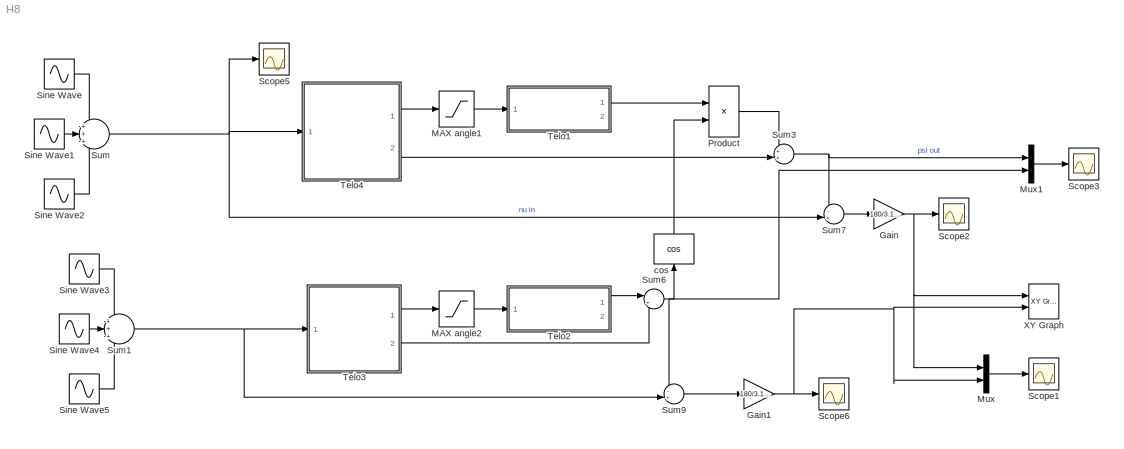
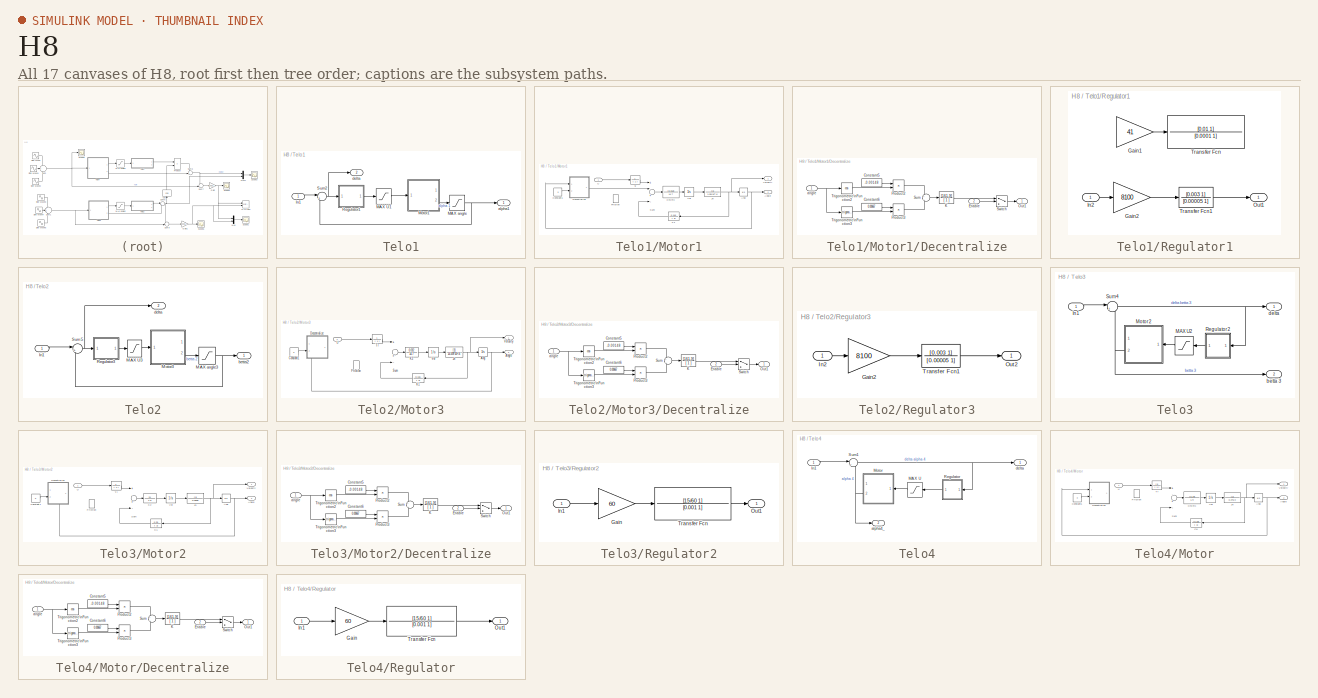
[diagram: thumbnail index - all 17 canvases of the model, root first then tree order]
MODEL H8
KIND model
BLOCK [Gain] Gain
  Gain = 180/3.14*60*60
  OutDataType = fixdt(1, 16)
  OutDataTypeMode = Inherit via internal rule
  OutDataTypeStr = Inherit: Inherit via internal rule
  OutScaling = 2^0
  ParamDataTypeStr = Inherit: Inherit via internal rule
  ParameterDataType = fixdt(1, 16)
  ParameterDataTypeMode = Inherit via internal rule
  ParameterScaling = 2^0
  SaturateOnIntegerOverflow = off
BLOCK [Gain] Gain1
  Gain = 180/3.14*60*60
  OutDataType = fixdt(1, 16)
  OutDataTypeMode = Inherit via internal rule
  OutDataTypeStr = Inherit: Inherit via internal rule
  OutScaling = 2^0
  ParamDataTypeStr = Inherit: Inherit via internal rule
  ParameterDataType = fixdt(1, 16)
  ParameterDataTypeMode = Inherit via internal rule
  ParameterScaling = 2^0
  SaturateOnIntegerOverflow = off
BLOCK [Saturate] MAX angle1
  LowerLimit = -3/180*3.14
  UpperLimit = 3/180*3.14
BLOCK [Saturate] MAX angle2
  LowerLimit = -3/180*3.14
  UpperLimit = 3/180*3.14
BLOCK [Mux] Mux
  DisplayOption = bar
  Inputs = 2
  Ports = [2, 1]
BLOCK [Mux] Mux1
  DisplayOption = bar
  Inputs = 2
  Ports = [2, 1]
BLOCK [Product] Product
  InputSameDT = off
  OutDataType = fixdt(1, 16)
  OutDataTypeMode = Inherit via internal rule
  OutDataTypeStr = Inherit: Inherit via internal rule
  OutScaling = 2^0
  Ports = [2, 1]
  SaturateOnIntegerOverflow = off
BLOCK [Scope] Scope1
  DataFormat = StructureWithTime
  Floating = off
  MaxDataPoints = 50000
  NumInputPorts = 1
  Ports = [1]
  SampleTime = 0
  YMax = 65000
  YMin = 25000
  ZoomMode = yonly
BLOCK [Scope] Scope2
  DataFormat = StructureWithTime
  Floating = off
  MaxDataPoints = 50000
  NumInputPorts = 1
  Ports = [1]
  SampleTime = 0
  SaveName = ScopeData2
  YMax = 65000
  YMin = 25000
  ZoomMode = yonly
BLOCK [Scope] Scope3
  DataFormat = StructureWithTime
  Floating = off
  MaxDataPoints = 50000
  NumInputPorts = 1
  Ports = [1]
  SampleTime = 0
  SaveName = ScopeData1
  YMax = 0.835
  YMin = 0.72
  ZoomMode = yonly
BLOCK [Scope] Scope5
  DataFormat = StructureWithTime
  Floating = off
  MaxDataPoints = 50000
  NumInputPorts = 1
  Ports = [1]
  SampleTime = 0
  SaveName = ScopeData5
  YMax = 0.025
  YMin = -0.375
  ZoomMode = yonly
BLOCK [Scope] Scope6
  DataFormat = StructureWithTime
  Floating = off
  MaxDataPoints = 50000
  NumInputPorts = 1
  Ports = [1]
  SampleTime = 0
  SaveName = ScopeData6
  YMax = 65000
  YMin = 25000
  ZoomMode = yonly
BLOCK [Sin] Sine Wave
  Amplitude = 0.8
  Bias = 0
  Frequency = 1
  Offset = 0
  Phase = 0
  Ports = [0, 1]
  SampleTime = 0
  Samples = 10
BLOCK [Sin] Sine Wave1
  Amplitude = 1/60
  Bias = 0
  Frequency = 2*pi*14
  Offset = 0
  Phase = 0
  Ports = [0, 1]
  SampleTime = 0
  Samples = 10
BLOCK [Sin] Sine Wave2
  Amplitude = 1/60
  Bias = 0
  Frequency = 2*pi*4
  Offset = 0
  Phase = 0
  Ports = [0, 1]
  SampleTime = 0
  Samples = 10
BLOCK [Sin] Sine Wave3
  Amplitude = 0.8
  Bias = 0
  Frequency = 1
  Offset = 0
  Phase = pi/2
  Ports = [0, 1]
  SampleTime = 0
  Samples = 10
BLOCK [Sin] Sine Wave4
  Amplitude = 1/60
  Bias = 0
  Frequency = 2*pi*14
  Offset = 0
  Phase = pi/2
  Ports = [0, 1]
  SampleTime = 0
  Samples = 10
BLOCK [Sin] Sine Wave5
  Amplitude = 1/60
  Bias = 0
  Frequency = 2*pi*4
  Offset = 0
  Phase = pi/2
  Ports = [0, 1]
  SampleTime = 0
  Samples = 10
BLOCK [Sum] Sum
  IconShape = round
  InputSameDT = off
  Inputs = +++
  OutDataType = fixdt(1, 16)
  OutDataTypeMode = Inherit via internal rule
  OutDataTypeStr = Inherit: Inherit via internal rule
  OutScaling = 2^0
  Ports = [3, 1]
  SaturateOnIntegerOverflow = off
BLOCK [Sum] Sum1
  IconShape = round
  InputSameDT = off
  Inputs = +++
  OutDataType = fixdt(1, 16)
  OutDataTypeMode = Inherit via internal rule
  OutDataTypeStr = Inherit: Inherit via internal rule
  OutScaling = 2^0
  Ports = [3, 1]
  SaturateOnIntegerOverflow = off
BLOCK [Sum] Sum3
  IconShape = round
  InputSameDT = off
  Inputs = ++|
  OutDataType = fixdt(1, 16)
  OutDataTypeMode = Inherit via internal rule
  OutDataTypeStr = Inherit: Inherit via internal rule
  OutScaling = 2^0
  Ports = [2, 1]
  SaturateOnIntegerOverflow = off
BLOCK [Sum] Sum6
  IconShape = round
  InputSameDT = off
  Inputs = |++
  OutDataType = fixdt(1, 16)
  OutDataTypeMode = Inherit via internal rule
  OutDataTypeStr = Inherit: Inherit via internal rule
  OutScaling = 2^0
  Ports = [2, 1]
  SaturateOnIntegerOverflow = off
BLOCK [Sum] Sum7
  IconShape = round
  InputSameDT = off
  Inputs = -+|
  OutDataType = fixdt(1, 16)
  OutDataTypeMode = Inherit via internal rule
  OutDataTypeStr = Inherit: Inherit via internal rule
  OutScaling = 2^0
  Ports = [2, 1]
  SaturateOnIntegerOverflow = off
BLOCK [Sum] Sum9
  IconShape = round
  InputSameDT = off
  Inputs = -+|
  OutDataType = fixdt(1, 16)
  OutDataTypeMode = Inherit via internal rule
  OutDataTypeStr = Inherit: Inherit via internal rule
  OutScaling = 2^0
  Ports = [2, 1]
  SaturateOnIntegerOverflow = off
BLOCK [SubSystem] Telo1
  FunctionWithSeparateData = off
  MaskHideContents = off
  MinAlgLoopOccurrences = off
  Opaque = off
  Ports = [1, 2]
  PropExecContextOutsideSubsystem = off
  RTWSystemCode = Auto
  RequestExecContextInheritance = off
BLOCK [Inport] Telo1/In1
  IconDisplay = Port number
  OutDataType = fixdt(1, 16)
  OutScaling = 2^0
BLOCK [Saturate] Telo1/MAX U1
  LowerLimit = -12
  UpperLimit = 12
BLOCK [Saturate] Telo1/MAX angle
  LowerLimit = -4/180*3.14
  UpperLimit = 4/180*3.14
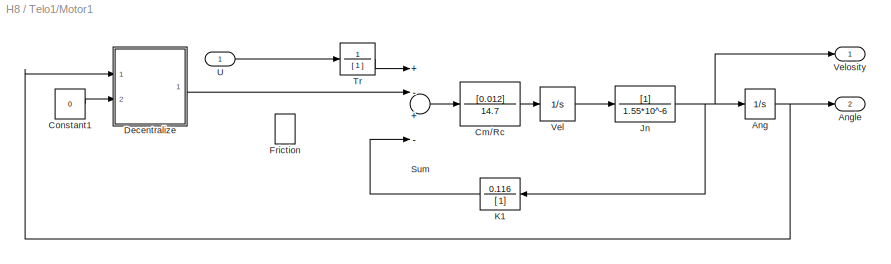
BLOCK [SubSystem] Telo1/Motor1
  FunctionWithSeparateData = off
  MaskHideContents = off
  MinAlgLoopOccurrences = off
  Opaque = off
  Ports = [1, 2]
  PropExecContextOutsideSubsystem = off
  RTWSystemCode = Auto
  RequestExecContextInheritance = off
  TreatAsAtomicUnit = on
BLOCK [Integrator] Telo1/Motor1/Ang
  Ports = [1, 1]
BLOCK [Outport] Telo1/Motor1/Angle
  IconDisplay = Port number
  OutDataType = fixdt(1, 16)
  OutScaling = 2^0
  Port = 2
BLOCK [TransferFcn] Telo1/Motor1/Cm//Rc
  Denominator = 14.7
  Numerator = [0.012]
BLOCK [Constant] Telo1/Motor1/Constant1
  OutDataType = fixdt(1, 16)
  OutScaling = 2^0
  Value = 0
BLOCK [SubSystem] Telo1/Motor1/Decentralize
  FunctionWithSeparateData = off
  MaskHideContents = off
  MinAlgLoopOccurrences = off
  Opaque = off
  Ports = [2, 1]
  PropExecContextOutsideSubsystem = off
  RTWSystemCode = Auto
  RequestExecContextInheritance = off
  TreatAsAtomicUnit = on
BLOCK [Constant] Telo1/Motor1/Decentralize/Constant5
  Value = -0.00148
BLOCK [Constant] Telo1/Motor1/Decentralize/Constant6
  Value = 0.00667
BLOCK [Inport] Telo1/Motor1/Decentralize/Enable
  IconDisplay = Port number
  OutDataType = fixdt(1, 16)
  OutScaling = 2^0
  Port = 2
BLOCK [TransferFcn] Telo1/Motor1/Decentralize/K
  Denominator = [ 1 ]
  Numerator = [161.9]
BLOCK [Outport] Telo1/Motor1/Decentralize/Out1
  IconDisplay = Port number
  OutDataType = fixdt(1, 16)
  OutScaling = 2^0
BLOCK [Product] Telo1/Motor1/Decentralize/Product2
  InputSameDT = off
  OutDataTypeMode = Inherit via internal rule
  OutDataTypeStr = Inherit: Inherit via internal rule
  Ports = [2, 1]
  SaturateOnIntegerOverflow = off
BLOCK [Product] Telo1/Motor1/Decentralize/Product3
  InputSameDT = off
  OutDataTypeMode = Inherit via internal rule
  OutDataTypeStr = Inherit: Inherit via internal rule
  Ports = [2, 1]
  SaturateOnIntegerOverflow = off
BLOCK [Sum] Telo1/Motor1/Decentralize/Sum
  IconShape = round
  InputSameDT = off
  Inputs = +|-
  OutDataType = fixdt(1, 16)
  OutDataTypeMode = Inherit via internal rule
  OutDataTypeStr = Inherit: Inherit via internal rule
  OutScaling = 2^0
  Ports = [2, 1]
  SaturateOnIntegerOverflow = off
BLOCK [Switch] Telo1/Motor1/Decentralize/Switch
  Criteria = u2 > Threshold
  InputSameDT = off
  OutDataType = fixdt(1, 16)
  OutScaling = 2^0
  SaturateOnIntegerOverflow = off
BLOCK [Trigonometry] Telo1/Motor1/Decentralize/Trigonometric\nFunction2
  Operator = cos
  Ports = [1, 1]
BLOCK [Trigonometry] Telo1/Motor1/Decentralize/Trigonometric\nFunction3
  Ports = [1, 1]
BLOCK [Inport] Telo1/Motor1/Decentralize/angle
  IconDisplay = Port number
  OutDataType = fixdt(1, 16)
  OutScaling = 2^0
BLOCK [DeadZone] Telo1/Motor1/Friction
  LowerValue = -1.4
  UpperValue = 1.4
BLOCK [TransferFcn] Telo1/Motor1/Jn
  Denominator = 1.55*10^-6
BLOCK [TransferFcn] Telo1/Motor1/K1
  Denominator = [ 1]
  Numerator = 0.116
BLOCK [Sum] Telo1/Motor1/Sum
  InputSameDT = off
  Inputs = +-+-
  OutDataTypeMode = Inherit via internal rule
  OutDataTypeStr = Inherit: Inherit via internal rule
  Ports = [4, 1]
  SaturateOnIntegerOverflow = off
BLOCK [TransferFcn] Telo1/Motor1/Tr
  Denominator = [ 1 ]
  Numerator = 1
BLOCK [Inport] Telo1/Motor1/U
  IconDisplay = Port number
  OutDataType = fixdt(1, 16)
  OutScaling = 2^0
BLOCK [Integrator] Telo1/Motor1/Vel
  Ports = [1, 1]
BLOCK [Outport] Telo1/Motor1/Velosity
  IconDisplay = Port number
  OutDataType = fixdt(1, 16)
  OutScaling = 2^0
BLOCK [SubSystem] Telo1/Regulator1
  FunctionWithSeparateData = off
  MaskHideContents = off
  MinAlgLoopOccurrences = off
  Opaque = off
  Ports = [1, 1]
  PropExecContextOutsideSubsystem = off
  RTWSystemCode = Auto
  RequestExecContextInheritance = off
BLOCK [Gain] Telo1/Regulator1/Gain1
  Gain = 41
  OutDataType = fixdt(1, 16)
  OutDataTypeMode = Inherit via internal rule
  OutDataTypeStr = Inherit: Inherit via internal rule
  OutScaling = 2^0
  ParamDataTypeStr = Inherit: Inherit via internal rule
  ParameterDataType = fixdt(1, 16)
  ParameterDataTypeMode = Inherit via internal rule
  ParameterScaling = 2^0
  SaturateOnIntegerOverflow = off
BLOCK [Gain] Telo1/Regulator1/Gain2
  Gain = 8100
  OutDataType = fixdt(1, 16)
  OutDataTypeMode = Inherit via internal rule
  OutDataTypeStr = Inherit: Inherit via internal rule
  OutScaling = 2^0
  ParamDataTypeStr = Inherit: Inherit via internal rule
  ParameterDataType = fixdt(1, 16)
  ParameterDataTypeMode = Inherit via internal rule
  ParameterScaling = 2^0
  SaturateOnIntegerOverflow = off
BLOCK [Inport] Telo1/Regulator1/In2
  IconDisplay = Port number
  OutDataType = fixdt(1, 16)
  OutScaling = 2^0
BLOCK [Outport] Telo1/Regulator1/Out1
  IconDisplay = Port number
  OutDataType = fixdt(1, 16)
  OutScaling = 2^0
BLOCK [TransferFcn] Telo1/Regulator1/Transfer Fcn
  Denominator = [0.0001 1]
  Numerator = [0.01 1]
BLOCK [TransferFcn] Telo1/Regulator1/Transfer Fcn1
  Denominator = [0.00005 1]
  Numerator = [0.003 1]
BLOCK [Sum] Telo1/Sum2
  IconShape = round
  InputSameDT = off
  Inputs = |+-
  OutDataType = fixdt(1, 16)
  OutDataTypeMode = Inherit via internal rule
  OutDataTypeStr = Inherit: Inherit via internal rule
  OutScaling = 2^0
  Ports = [2, 1]
  SaturateOnIntegerOverflow = off
BLOCK [Outport] Telo1/alpha1
  IconDisplay = Port number
  OutDataType = fixdt(1, 16)
  OutScaling = 2^0
BLOCK [Outport] Telo1/delta
  IconDisplay = Port number
  OutDataType = fixdt(1, 16)
  OutScaling = 2^0
  Port = 2
BLOCK [SubSystem] Telo2
  FunctionWithSeparateData = off
  MaskHideContents = off
  MinAlgLoopOccurrences = off
  Opaque = off
  Ports = [1, 2]
  PropExecContextOutsideSubsystem = off
  RTWSystemCode = Auto
  RequestExecContextInheritance = off
BLOCK [Inport] Telo2/In1
  IconDisplay = Port number
  OutDataType = fixdt(1, 16)
  OutScaling = 2^0
BLOCK [Saturate] Telo2/MAX U3
  LowerLimit = -12
  UpperLimit = 12
BLOCK [Saturate] Telo2/MAX angle3
  LowerLimit = -4/180*3.14
  UpperLimit = 4/180*3.14
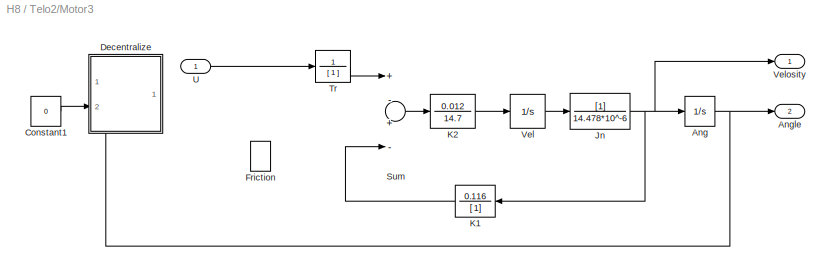
BLOCK [SubSystem] Telo2/Motor3
  FunctionWithSeparateData = off
  MaskHideContents = off
  MinAlgLoopOccurrences = off
  Opaque = off
  Ports = [1, 2]
  PropExecContextOutsideSubsystem = off
  RTWSystemCode = Auto
  RequestExecContextInheritance = off
  TreatAsAtomicUnit = on
BLOCK [Integrator] Telo2/Motor3/Ang
  Ports = [1, 1]
BLOCK [Outport] Telo2/Motor3/Angle
  IconDisplay = Port number
  OutDataType = fixdt(1, 16)
  OutScaling = 2^0
  Port = 2
BLOCK [Constant] Telo2/Motor3/Constant1
  OutDataType = fixdt(1, 16)
  OutScaling = 2^0
  Value = 0
BLOCK [SubSystem] Telo2/Motor3/Decentralize
  FunctionWithSeparateData = off
  MaskHideContents = off
  MinAlgLoopOccurrences = off
  Opaque = off
  Ports = [2, 1]
  PropExecContextOutsideSubsystem = off
  RTWSystemCode = Auto
  RequestExecContextInheritance = off
  TreatAsAtomicUnit = on
BLOCK [Constant] Telo2/Motor3/Decentralize/Constant5
  Value = -0.00148
BLOCK [Constant] Telo2/Motor3/Decentralize/Constant6
  Value = 0.00667
BLOCK [Inport] Telo2/Motor3/Decentralize/Enable
  IconDisplay = Port number
  OutDataType = fixdt(1, 16)
  OutScaling = 2^0
  Port = 2
BLOCK [TransferFcn] Telo2/Motor3/Decentralize/K
  Denominator = [ 1 ]
  Numerator = [161.9]
BLOCK [Outport] Telo2/Motor3/Decentralize/Out1
  IconDisplay = Port number
  OutDataType = fixdt(1, 16)
  OutScaling = 2^0
BLOCK [Product] Telo2/Motor3/Decentralize/Product2
  InputSameDT = off
  OutDataTypeMode = Inherit via internal rule
  OutDataTypeStr = Inherit: Inherit via internal rule
  Ports = [2, 1]
  SaturateOnIntegerOverflow = off
BLOCK [Product] Telo2/Motor3/Decentralize/Product3
  InputSameDT = off
  OutDataTypeMode = Inherit via internal rule
  OutDataTypeStr = Inherit: Inherit via internal rule
  Ports = [2, 1]
  SaturateOnIntegerOverflow = off
BLOCK [Sum] Telo2/Motor3/Decentralize/Sum
  IconShape = round
  InputSameDT = off
  Inputs = +|-
  OutDataType = fixdt(1, 16)
  OutDataTypeMode = Inherit via internal rule
  OutDataTypeStr = Inherit: Inherit via internal rule
  OutScaling = 2^0
  Ports = [2, 1]
  SaturateOnIntegerOverflow = off
BLOCK [Switch] Telo2/Motor3/Decentralize/Switch
  Criteria = u2 > Threshold
  InputSameDT = off
  OutDataType = fixdt(1, 16)
  OutScaling = 2^0
  SaturateOnIntegerOverflow = off
BLOCK [Trigonometry] Telo2/Motor3/Decentralize/Trigonometric\nFunction2
  Operator = cos
  Ports = [1, 1]
BLOCK [Trigonometry] Telo2/Motor3/Decentralize/Trigonometric\nFunction3
  Ports = [1, 1]
BLOCK [Inport] Telo2/Motor3/Decentralize/angle
  IconDisplay = Port number
  OutDataType = fixdt(1, 16)
  OutScaling = 2^0
BLOCK [DeadZone] Telo2/Motor3/Friction
  LowerValue = -1.4
  UpperValue = 1.4
BLOCK [TransferFcn] Telo2/Motor3/Jn
  Denominator = 14.478*10^-6
BLOCK [TransferFcn] Telo2/Motor3/K1
  Denominator = [ 1]
  Numerator = 0.116
BLOCK [TransferFcn] Telo2/Motor3/K2
  Denominator = 14.7
  Numerator = 0.012
BLOCK [Sum] Telo2/Motor3/Sum
  InputSameDT = off
  Inputs = +-+-
  OutDataTypeMode = Inherit via internal rule
  OutDataTypeStr = Inherit: Inherit via internal rule
  Ports = [4, 1]
  SaturateOnIntegerOverflow = off
BLOCK [TransferFcn] Telo2/Motor3/Tr
  Denominator = [ 1 ]
  Numerator = 1
BLOCK [Inport] Telo2/Motor3/U
  IconDisplay = Port number
  OutDataType = fixdt(1, 16)
  OutScaling = 2^0
BLOCK [Integrator] Telo2/Motor3/Vel
  Ports = [1, 1]
BLOCK [Outport] Telo2/Motor3/Velosity
  IconDisplay = Port number
  OutDataType = fixdt(1, 16)
  OutScaling = 2^0
BLOCK [SubSystem] Telo2/Regulator3
  FunctionWithSeparateData = off
  MaskHideContents = off
  MinAlgLoopOccurrences = off
  Opaque = off
  Ports = [1, 1]
  PropExecContextOutsideSubsystem = off
  RTWSystemCode = Auto
  RequestExecContextInheritance = off
BLOCK [Gain] Telo2/Regulator3/Gain2
  Gain = 8100
  OutDataType = fixdt(1, 16)
  OutDataTypeMode = Inherit via internal rule
  OutDataTypeStr = Inherit: Inherit via internal rule
  OutScaling = 2^0
  ParamDataTypeStr = Inherit: Inherit via internal rule
  ParameterDataType = fixdt(1, 16)
  ParameterDataTypeMode = Inherit via internal rule
  ParameterScaling = 2^0
  SaturateOnIntegerOverflow = off
BLOCK [Inport] Telo2/Regulator3/In2
  IconDisplay = Port number
  OutDataType = fixdt(1, 16)
  OutScaling = 2^0
BLOCK [Outport] Telo2/Regulator3/Out2
  IconDisplay = Port number
  OutDataType = fixdt(1, 16)
  OutScaling = 2^0
BLOCK [TransferFcn] Telo2/Regulator3/Transfer Fcn1
  Denominator = [0.00005 1]
  Numerator = [0.003 1]
BLOCK [Sum] Telo2/Sum5
  IconShape = round
  InputSameDT = off
  Inputs = |+-
  OutDataType = fixdt(1, 16)
  OutDataTypeMode = Inherit via internal rule
  OutDataTypeStr = Inherit: Inherit via internal rule
  OutScaling = 2^0
  Ports = [2, 1]
  SaturateOnIntegerOverflow = off
BLOCK [Outport] Telo2/betta2
  IconDisplay = Port number
  OutDataType = fixdt(1, 16)
  OutScaling = 2^0
BLOCK [Outport] Telo2/delta
  IconDisplay = Port number
  OutDataType = fixdt(1, 16)
  OutScaling = 2^0
  Port = 2
BLOCK [SubSystem] Telo3
  FunctionWithSeparateData = off
  MaskHideContents = off
  MinAlgLoopOccurrences = off
  Opaque = off
  Ports = [1, 2]
  PropExecContextOutsideSubsystem = off
  RTWSystemCode = Auto
  RequestExecContextInheritance = off
BLOCK [Inport] Telo3/In1
  IconDisplay = Port number
  OutDataType = fixdt(1, 16)
  OutScaling = 2^0
BLOCK [Saturate] Telo3/MAX U2
  LowerLimit = -27
  UpperLimit = 27
BLOCK [SubSystem] Telo3/Motor2
  FunctionWithSeparateData = off
  MaskHideContents = off
  MinAlgLoopOccurrences = off
  Opaque = off
  Ports = [1, 2]
  PropExecContextOutsideSubsystem = off
  RTWSystemCode = Auto
  RequestExecContextInheritance = off
  TreatAsAtomicUnit = on
BLOCK [Integrator] Telo3/Motor2/Ang
  Ports = [1, 1]
BLOCK [Outport] Telo3/Motor2/Angle
  IconDisplay = Port number
  OutDataType = fixdt(1, 16)
  OutScaling = 2^0
  Port = 2
BLOCK [Constant] Telo3/Motor2/Constant1
  OutDataType = fixdt(1, 16)
  OutScaling = 2^0
  Value = 0
BLOCK [SubSystem] Telo3/Motor2/Decentralize
  FunctionWithSeparateData = off
  MaskHideContents = off
  MinAlgLoopOccurrences = off
  Opaque = off
  Ports = [2, 1]
  PropExecContextOutsideSubsystem = off
  RTWSystemCode = Auto
  RequestExecContextInheritance = off
  TreatAsAtomicUnit = on
BLOCK [Constant] Telo3/Motor2/Decentralize/Constant5
  Value = -0.00148
BLOCK [Constant] Telo3/Motor2/Decentralize/Constant6
  Value = 0.00667
BLOCK [Inport] Telo3/Motor2/Decentralize/Enable
  IconDisplay = Port number
  OutDataType = fixdt(1, 16)
  OutScaling = 2^0
  Port = 2
BLOCK [TransferFcn] Telo3/Motor2/Decentralize/K
  Denominator = [ 1 ]
  Numerator = [161.9]
BLOCK [Outport] Telo3/Motor2/Decentralize/Out1
  IconDisplay = Port number
  OutDataType = fixdt(1, 16)
  OutScaling = 2^0
BLOCK [Product] Telo3/Motor2/Decentralize/Product2
  InputSameDT = off
  OutDataTypeMode = Inherit via internal rule
  OutDataTypeStr = Inherit: Inherit via internal rule
  Ports = [2, 1]
  SaturateOnIntegerOverflow = off
BLOCK [Product] Telo3/Motor2/Decentralize/Product3
  InputSameDT = off
  OutDataTypeMode = Inherit via internal rule
  OutDataTypeStr = Inherit: Inherit via internal rule
  Ports = [2, 1]
  SaturateOnIntegerOverflow = off
BLOCK [Sum] Telo3/Motor2/Decentralize/Sum
  IconShape = round
  InputSameDT = off
  Inputs = +|-
  OutDataType = fixdt(1, 16)
  OutDataTypeMode = Inherit via internal rule
  OutDataTypeStr = Inherit: Inherit via internal rule
  OutScaling = 2^0
  Ports = [2, 1]
  SaturateOnIntegerOverflow = off
BLOCK [Switch] Telo3/Motor2/Decentralize/Switch
  Criteria = u2 > Threshold
  InputSameDT = off
  OutDataType = fixdt(1, 16)
  OutScaling = 2^0
  SaturateOnIntegerOverflow = off
BLOCK [Trigonometry] Telo3/Motor2/Decentralize/Trigonometric\nFunction2
  Operator = cos
  Ports = [1, 1]
BLOCK [Trigonometry] Telo3/Motor2/Decentralize/Trigonometric\nFunction3
  Ports = [1, 1]
BLOCK [Inport] Telo3/Motor2/Decentralize/angle
  IconDisplay = Port number
  OutDataType = fixdt(1, 16)
  OutScaling = 2^0
BLOCK [DeadZone] Telo3/Motor2/Friction
  LowerValue = -1.4
  UpperValue = 1.4
BLOCK [TransferFcn] Telo3/Motor2/Jn
  Denominator = 0.0838
BLOCK [TransferFcn] Telo3/Motor2/K1
  Denominator = [ 1]
  Numerator = 0.29
BLOCK [TransferFcn] Telo3/Motor2/K2
  Denominator = 1.9
  Numerator = 24
BLOCK [Sum] Telo3/Motor2/Sum
  InputSameDT = off
  Inputs = +-+-
  OutDataTypeMode = Inherit via internal rule
  OutDataTypeStr = Inherit: Inherit via internal rule
  Ports = [4, 1]
  SaturateOnIntegerOverflow = off
BLOCK [TransferFcn] Telo3/Motor2/Tr
  Denominator = [ 1 ]
  Numerator = 1
BLOCK [Inport] Telo3/Motor2/U
  IconDisplay = Port number
  OutDataType = fixdt(1, 16)
  OutScaling = 2^0
BLOCK [Integrator] Telo3/Motor2/Vel
  Ports = [1, 1]
BLOCK [Outport] Telo3/Motor2/Velosity
  IconDisplay = Port number
  OutDataType = fixdt(1, 16)
  OutScaling = 2^0
BLOCK [SubSystem] Telo3/Regulator2
  FunctionWithSeparateData = off
  MaskHideContents = off
  MinAlgLoopOccurrences = off
  Opaque = off
  Ports = [1, 1]
  PropExecContextOutsideSubsystem = off
  RTWSystemCode = Auto
  RequestExecContextInheritance = off
BLOCK [Gain] Telo3/Regulator2/Gain
  Gain = 60
  OutDataType = fixdt(1, 16)
  OutDataTypeMode = Inherit via internal rule
  OutDataTypeStr = Inherit: Inherit via internal rule
  OutScaling = 2^0
  ParamDataTypeStr = Inherit: Inherit via internal rule
  ParameterDataType = fixdt(1, 16)
  ParameterDataTypeMode = Inherit via internal rule
  ParameterScaling = 2^0
  SaturateOnIntegerOverflow = off
BLOCK [Inport] Telo3/Regulator2/In1
  IconDisplay = Port number
  OutDataType = fixdt(1, 16)
  OutScaling = 2^0
BLOCK [Outport] Telo3/Regulator2/Out1
  IconDisplay = Port number
  OutDataType = fixdt(1, 16)
  OutScaling = 2^0
BLOCK [TransferFcn] Telo3/Regulator2/Transfer Fcn
  Denominator = [0.001 1]
  Numerator = [15/60 1]
BLOCK [Sum] Telo3/Sum4
  IconShape = round
  InputSameDT = off
  Inputs = |+-
  OutDataType = fixdt(1, 16)
  OutDataTypeMode = Inherit via internal rule
  OutDataTypeStr = Inherit: Inherit via internal rule
  OutScaling = 2^0
  Ports = [2, 1]
  SaturateOnIntegerOverflow = off
BLOCK [Outport] Telo3/betta 3
  IconDisplay = Port number
  OutDataType = fixdt(1, 16)
  OutScaling = 2^0
  Port = 2
BLOCK [Outport] Telo3/delta
  IconDisplay = Port number
  OutDataType = fixdt(1, 16)
  OutScaling = 2^0
BLOCK [SubSystem] Telo4
  FunctionWithSeparateData = off
  MaskHideContents = off
  MinAlgLoopOccurrences = off
  Opaque = off
  Ports = [1, 2]
  PropExecContextOutsideSubsystem = off
  RTWSystemCode = Auto
  RequestExecContextInheritance = off
BLOCK [Inport] Telo4/In1
  IconDisplay = Port number
  OutDataType = fixdt(1, 16)
  OutScaling = 2^0
BLOCK [Saturate] Telo4/MAX U
  LowerLimit = -27
  UpperLimit = 27
BLOCK [SubSystem] Telo4/Motor
  FunctionWithSeparateData = off
  MaskHideContents = off
  MinAlgLoopOccurrences = off
  Opaque = off
  Ports = [1, 2]
  PropExecContextOutsideSubsystem = off
  RTWSystemCode = Auto
  RequestExecContextInheritance = off
  TreatAsAtomicUnit = on
BLOCK [Integrator] Telo4/Motor/Ang
  Ports = [1, 1]
BLOCK [Outport] Telo4/Motor/Angle
  IconDisplay = Port number
  OutDataType = fixdt(1, 16)
  OutScaling = 2^0
  Port = 2
BLOCK [TransferFcn] Telo4/Motor/Ce
  Denominator = [ 1]
  Numerator = [0.29]
BLOCK [TransferFcn] Telo4/Motor/Cm//Rc
  Denominator = 1.9
  Numerator = [0.24]
BLOCK [Constant] Telo4/Motor/Constant1
  OutDataType = fixdt(1, 16)
  OutScaling = 2^0
  Value = 0
BLOCK [SubSystem] Telo4/Motor/Decentralize
  FunctionWithSeparateData = off
  MaskHideContents = off
  MinAlgLoopOccurrences = off
  Opaque = off
  Ports = [2, 1]
  PropExecContextOutsideSubsystem = off
  RTWSystemCode = Auto
  RequestExecContextInheritance = off
  TreatAsAtomicUnit = on
BLOCK [Constant] Telo4/Motor/Decentralize/Constant5
  Value = -0.00148
BLOCK [Constant] Telo4/Motor/Decentralize/Constant6
  Value = 0.00667
BLOCK [Inport] Telo4/Motor/Decentralize/Enable
  IconDisplay = Port number
  OutDataType = fixdt(1, 16)
  OutScaling = 2^0
  Port = 2
BLOCK [TransferFcn] Telo4/Motor/Decentralize/K
  Denominator = [ 1 ]
  Numerator = [161.9]
BLOCK [Outport] Telo4/Motor/Decentralize/Out1
  IconDisplay = Port number
  OutDataType = fixdt(1, 16)
  OutScaling = 2^0
BLOCK [Product] Telo4/Motor/Decentralize/Product2
  InputSameDT = off
  OutDataTypeMode = Inherit via internal rule
  OutDataTypeStr = Inherit: Inherit via internal rule
  Ports = [2, 1]
  SaturateOnIntegerOverflow = off
BLOCK [Product] Telo4/Motor/Decentralize/Product3
  InputSameDT = off
  OutDataTypeMode = Inherit via internal rule
  OutDataTypeStr = Inherit: Inherit via internal rule
  Ports = [2, 1]
  SaturateOnIntegerOverflow = off
BLOCK [Sum] Telo4/Motor/Decentralize/Sum
  IconShape = round
  InputSameDT = off
  Inputs = +|-
  OutDataType = fixdt(1, 16)
  OutDataTypeMode = Inherit via internal rule
  OutDataTypeStr = Inherit: Inherit via internal rule
  OutScaling = 2^0
  Ports = [2, 1]
  SaturateOnIntegerOverflow = off
BLOCK [Switch] Telo4/Motor/Decentralize/Switch
  Criteria = u2 > Threshold
  InputSameDT = off
  OutDataType = fixdt(1, 16)
  OutScaling = 2^0
  SaturateOnIntegerOverflow = off
BLOCK [Trigonometry] Telo4/Motor/Decentralize/Trigonometric\nFunction2
  Operator = cos
  Ports = [1, 1]
BLOCK [Trigonometry] Telo4/Motor/Decentralize/Trigonometric\nFunction3
  Ports = [1, 1]
BLOCK [Inport] Telo4/Motor/Decentralize/angle
  IconDisplay = Port number
  OutDataType = fixdt(1, 16)
  OutScaling = 2^0
BLOCK [DeadZone] Telo4/Motor/Friction
  LowerValue = -1.4
  UpperValue = 1.4
BLOCK [TransferFcn] Telo4/Motor/Jn
  Denominator = 0.271/2
BLOCK [Sum] Telo4/Motor/Sum
  InputSameDT = off
  Inputs = +-+-
  OutDataTypeMode = Inherit via internal rule
  OutDataTypeStr = Inherit: Inherit via internal rule
  Ports = [4, 1]
  SaturateOnIntegerOverflow = off
BLOCK [TransferFcn] Telo4/Motor/Tr
  Denominator = [ 1 ]
BLOCK [Inport] Telo4/Motor/U
  IconDisplay = Port number
  OutDataType = fixdt(1, 16)
  OutScaling = 2^0
BLOCK [Integrator] Telo4/Motor/Vel
  Ports = [1, 1]
BLOCK [Outport] Telo4/Motor/Velosity
  IconDisplay = Port number
  OutDataType = fixdt(1, 16)
  OutScaling = 2^0
BLOCK [SubSystem] Telo4/Regulator
  FunctionWithSeparateData = off
  MaskHideContents = off
  MinAlgLoopOccurrences = off
  Opaque = off
  Ports = [1, 1]
  PropExecContextOutsideSubsystem = off
  RTWSystemCode = Auto
  RequestExecContextInheritance = off
BLOCK [Gain] Telo4/Regulator/Gain
  Gain = 60
  OutDataType = fixdt(1, 16)
  OutDataTypeMode = Inherit via internal rule
  OutDataTypeStr = Inherit: Inherit via internal rule
  OutScaling = 2^0
  ParamDataTypeStr = Inherit: Inherit via internal rule
  ParameterDataType = fixdt(1, 16)
  ParameterDataTypeMode = Inherit via internal rule
  ParameterScaling = 2^0
  SaturateOnIntegerOverflow = off
BLOCK [Inport] Telo4/Regulator/In1
  IconDisplay = Port number
  OutDataType = fixdt(1, 16)
  OutScaling = 2^0
BLOCK [Outport] Telo4/Regulator/Out1
  IconDisplay = Port number
  OutDataType = fixdt(1, 16)
  OutScaling = 2^0
BLOCK [TransferFcn] Telo4/Regulator/Transfer Fcn
  Denominator = [0.001 1]
  Numerator = [15/60 1]
BLOCK [Sum] Telo4/Sum1
  IconShape = round
  InputSameDT = off
  Inputs = |+-
  OutDataType = fixdt(1, 16)
  OutDataTypeMode = Inherit via internal rule
  OutDataTypeStr = Inherit: Inherit via internal rule
  OutScaling = 2^0
  Ports = [2, 1]
  SaturateOnIntegerOverflow = off
BLOCK [Outport] Telo4/alpha4_
  IconDisplay = Port number
  OutDataType = fixdt(1, 16)
  OutScaling = 2^0
  Port = 2
BLOCK [Outport] Telo4/delta
  IconDisplay = Port number
  OutDataType = fixdt(1, 16)
  OutScaling = 2^0
BLOCK [Reference] XY Graph  REF=simulink/Sinks/XY Graph
  FunctionWithSeparateData = off
  Ports = [2]
  RTWMemSecDataConstants = Inherit from model
  RTWMemSecDataInternal = Inherit from model
  RTWMemSecDataParameters = Inherit from model
  RTWMemSecFuncExecute = Inherit from model
  RTWMemSecFuncInitTerm = Inherit from model
  ShowPortLabels = FromPortIcon
  SourceBlock = simulink/Sinks/XY Graph
  SourceType = XY scope.
  SystemSampleTime = -1
  st = -1
  xmax = 3*1280
  xmin = -3*1280
  ymax = 3*960
  ymin = -3*960
BLOCK [Trigonometry] cos
  Operator = cos
  Ports = [1, 1]
NET Gain1:1 -> Mux:2, Scope6:1, XY Graph:2
NET Gain:1 -> Mux:1, Scope2:1, XY Graph:1
LINE MAX angle1:1 -> Telo1:1
LINE MAX angle2:1 -> Telo2:1
LINE Mux1:1 -> Scope3:1
LINE Mux:1 -> Scope1:1
LINE Product:1 -> Sum3:1
LINE Sine Wave1:1 -> Sum:2
LINE Sine Wave2:1 -> Sum:3
LINE Sine Wave3:1 -> Sum1:1
LINE Sine Wave4:1 -> Sum1:2
LINE Sine Wave5:1 -> Sum1:3
LINE Sine Wave:1 -> Sum:1
NET Sum1:1 -> Sum9:2, Telo3:1
NET Sum3:1 -> Mux1:1, Sum7:1
NET Sum6:1 -> Mux1:2, Sum9:1, cos:1
LINE Sum7:1 -> Gain:1
LINE Sum9:1 -> Gain1:1
NET Sum:1 -> Scope5:1, Sum7:2, Telo4:1
LINE Telo1/In1:1 -> Telo1/Sum2:1
LINE Telo1/MAX U1:1 -> Telo1/Motor1:1
NET Telo1/MAX angle:1 -> Telo1/Sum2:2, Telo1/alpha1:1
NET Telo1/Motor1/Ang:1 -> Telo1/Motor1/Angle:1, Telo1/Motor1/Decentralize:1
LINE Telo1/Motor1/Cm//Rc:1 -> Telo1/Motor1/Vel:1
LINE Telo1/Motor1/Constant1:1 -> Telo1/Motor1/Decentralize:2
LINE Telo1/Motor1/Decentralize/Constant5:1 -> Telo1/Motor1/Decentralize/Product2:1
LINE Telo1/Motor1/Decentralize/Constant6:1 -> Telo1/Motor1/Decentralize/Product3:1
LINE Telo1/Motor1/Decentralize/Enable:1 -> Telo1/Motor1/Decentralize/Switch:2
LINE Telo1/Motor1/Decentralize/K:1 -> Telo1/Motor1/Decentralize/Switch:1
LINE Telo1/Motor1/Decentralize/Product2:1 -> Telo1/Motor1/Decentralize/Sum:1
LINE Telo1/Motor1/Decentralize/Product3:1 -> Telo1/Motor1/Decentralize/Sum:2
LINE Telo1/Motor1/Decentralize/Sum:1 -> Telo1/Motor1/Decentralize/K:1
LINE Telo1/Motor1/Decentralize/Switch:1 -> Telo1/Motor1/Decentralize/Out1:1
LINE Telo1/Motor1/Decentralize/Trigonometric\nFunction2:1 -> Telo1/Motor1/Decentralize/Product2:2
LINE Telo1/Motor1/Decentralize/Trigonometric\nFunction3:1 -> Telo1/Motor1/Decentralize/Product3:2
NET Telo1/Motor1/Decentralize/angle:1 -> Telo1/Motor1/Decentralize/Trigonometric\nFunction2:1, Telo1/Motor1/Decentralize/Trigonometric\nFunction3:1
LINE Telo1/Motor1/Decentralize:1 -> Telo1/Motor1/Sum:2
NET Telo1/Motor1/Jn:1 -> Telo1/Motor1/Ang:1, Telo1/Motor1/K1:1, Telo1/Motor1/Velosity:1
LINE Telo1/Motor1/K1:1 -> Telo1/Motor1/Sum:4
LINE Telo1/Motor1/Sum:1 -> Telo1/Motor1/Cm//Rc:1
LINE Telo1/Motor1/Tr:1 -> Telo1/Motor1/Sum:1
LINE Telo1/Motor1/U:1 -> Telo1/Motor1/Tr:1
LINE Telo1/Motor1/Vel:1 -> Telo1/Motor1/Jn:1
LINE Telo1/Motor1:2 -> Telo1/MAX angle:1
LINE Telo1/Regulator1/Gain1:1 -> Telo1/Regulator1/Transfer Fcn:1
LINE Telo1/Regulator1/Gain2:1 -> Telo1/Regulator1/Transfer Fcn1:1
LINE Telo1/Regulator1/In2:1 -> Telo1/Regulator1/Gain2:1
LINE Telo1/Regulator1/Transfer Fcn1:1 -> Telo1/Regulator1/Out1:1
LINE Telo1/Regulator1:1 -> Telo1/MAX U1:1
NET Telo1/Sum2:1 -> Telo1/Regulator1:1, Telo1/delta:1
LINE Telo1:1 -> Product:1
LINE Telo2/In1:1 -> Telo2/Sum5:1
LINE Telo2/MAX U3:1 -> Telo2/Motor3:1
NET Telo2/MAX angle3:1 -> Telo2/Sum5:2, Telo2/betta2:1
NET Telo2/Motor3/Ang:1 -> Telo2/Motor3/Angle:1, Telo2/Motor3/Decentralize:1
LINE Telo2/Motor3/Constant1:1 -> Telo2/Motor3/Decentralize:2
LINE Telo2/Motor3/Decentralize/Constant5:1 -> Telo2/Motor3/Decentralize/Product2:1
LINE Telo2/Motor3/Decentralize/Constant6:1 -> Telo2/Motor3/Decentralize/Product3:1
LINE Telo2/Motor3/Decentralize/Enable:1 -> Telo2/Motor3/Decentralize/Switch:2
LINE Telo2/Motor3/Decentralize/K:1 -> Telo2/Motor3/Decentralize/Switch:1
LINE Telo2/Motor3/Decentralize/Product2:1 -> Telo2/Motor3/Decentralize/Sum:1
LINE Telo2/Motor3/Decentralize/Product3:1 -> Telo2/Motor3/Decentralize/Sum:2
LINE Telo2/Motor3/Decentralize/Sum:1 -> Telo2/Motor3/Decentralize/K:1
LINE Telo2/Motor3/Decentralize/Switch:1 -> Telo2/Motor3/Decentralize/Out1:1
LINE Telo2/Motor3/Decentralize/Trigonometric\nFunction2:1 -> Telo2/Motor3/Decentralize/Product2:2
LINE Telo2/Motor3/Decentralize/Trigonometric\nFunction3:1 -> Telo2/Motor3/Decentralize/Product3:2
NET Telo2/Motor3/Decentralize/angle:1 -> Telo2/Motor3/Decentralize/Trigonometric\nFunction2:1, Telo2/Motor3/Decentralize/Trigonometric\nFunction3:1
NET Telo2/Motor3/Jn:1 -> Telo2/Motor3/Ang:1, Telo2/Motor3/K1:1, Telo2/Motor3/Velosity:1
LINE Telo2/Motor3/K1:1 -> Telo2/Motor3/Sum:4
LINE Telo2/Motor3/K2:1 -> Telo2/Motor3/Vel:1
LINE Telo2/Motor3/Sum:1 -> Telo2/Motor3/K2:1
LINE Telo2/Motor3/Tr:1 -> Telo2/Motor3/Sum:1
LINE Telo2/Motor3/U:1 -> Telo2/Motor3/Tr:1
LINE Telo2/Motor3/Vel:1 -> Telo2/Motor3/Jn:1
LINE Telo2/Motor3:2 -> Telo2/MAX angle3:1
LINE Telo2/Regulator3/Gain2:1 -> Telo2/Regulator3/Transfer Fcn1:1
LINE Telo2/Regulator3/In2:1 -> Telo2/Regulator3/Gain2:1
LINE Telo2/Regulator3/Transfer Fcn1:1 -> Telo2/Regulator3/Out2:1
LINE Telo2/Regulator3:1 -> Telo2/MAX U3:1
NET Telo2/Sum5:1 -> Telo2/Regulator3:1, Telo2/delta:1
LINE Telo2:1 -> Sum6:1
LINE Telo3/In1:1 -> Telo3/Sum4:1
LINE Telo3/MAX U2:1 -> Telo3/Motor2:1
NET Telo3/Motor2/Ang:1 -> Telo3/Motor2/Angle:1, Telo3/Motor2/Decentralize:1
LINE Telo3/Motor2/Constant1:1 -> Telo3/Motor2/Decentralize:2
LINE Telo3/Motor2/Decentralize/Constant5:1 -> Telo3/Motor2/Decentralize/Product2:1
LINE Telo3/Motor2/Decentralize/Constant6:1 -> Telo3/Motor2/Decentralize/Product3:1
LINE Telo3/Motor2/Decentralize/Enable:1 -> Telo3/Motor2/Decentralize/Switch:2
LINE Telo3/Motor2/Decentralize/K:1 -> Telo3/Motor2/Decentralize/Switch:1
LINE Telo3/Motor2/Decentralize/Product2:1 -> Telo3/Motor2/Decentralize/Sum:1
LINE Telo3/Motor2/Decentralize/Product3:1 -> Telo3/Motor2/Decentralize/Sum:2
LINE Telo3/Motor2/Decentralize/Sum:1 -> Telo3/Motor2/Decentralize/K:1
LINE Telo3/Motor2/Decentralize/Switch:1 -> Telo3/Motor2/Decentralize/Out1:1
LINE Telo3/Motor2/Decentralize/Trigonometric\nFunction2:1 -> Telo3/Motor2/Decentralize/Product2:2
LINE Telo3/Motor2/Decentralize/Trigonometric\nFunction3:1 -> Telo3/Motor2/Decentralize/Product3:2
NET Telo3/Motor2/Decentralize/angle:1 -> Telo3/Motor2/Decentralize/Trigonometric\nFunction2:1, Telo3/Motor2/Decentralize/Trigonometric\nFunction3:1
NET Telo3/Motor2/Jn:1 -> Telo3/Motor2/Ang:1, Telo3/Motor2/K1:1, Telo3/Motor2/Velosity:1
LINE Telo3/Motor2/K1:1 -> Telo3/Motor2/Sum:4
LINE Telo3/Motor2/K2:1 -> Telo3/Motor2/Vel:1
LINE Telo3/Motor2/Sum:1 -> Telo3/Motor2/K2:1
LINE Telo3/Motor2/Tr:1 -> Telo3/Motor2/Sum:1
LINE Telo3/Motor2/U:1 -> Telo3/Motor2/Tr:1
LINE Telo3/Motor2/Vel:1 -> Telo3/Motor2/Jn:1
NET Telo3/Motor2:2 -> Telo3/Sum4:2, Telo3/betta 3:1
LINE Telo3/Regulator2/Gain:1 -> Telo3/Regulator2/Transfer Fcn:1
LINE Telo3/Regulator2/In1:1 -> Telo3/Regulator2/Gain:1
LINE Telo3/Regulator2/Transfer Fcn:1 -> Telo3/Regulator2/Out1:1
LINE Telo3/Regulator2:1 -> Telo3/MAX U2:1
NET Telo3/Sum4:1 -> Telo3/Regulator2:1, Telo3/delta:1
LINE Telo3:1 -> MAX angle2:1
LINE Telo3:2 -> Sum6:2
LINE Telo4/In1:1 -> Telo4/Sum1:1
LINE Telo4/MAX U:1 -> Telo4/Motor:1
NET Telo4/Motor/Ang:1 -> Telo4/Motor/Angle:1, Telo4/Motor/Decentralize:1
LINE Telo4/Motor/Ce:1 -> Telo4/Motor/Sum:4
LINE Telo4/Motor/Cm//Rc:1 -> Telo4/Motor/Vel:1
LINE Telo4/Motor/Constant1:1 -> Telo4/Motor/Decentralize:2
LINE Telo4/Motor/Decentralize/Constant5:1 -> Telo4/Motor/Decentralize/Product2:1
LINE Telo4/Motor/Decentralize/Constant6:1 -> Telo4/Motor/Decentralize/Product3:1
LINE Telo4/Motor/Decentralize/Enable:1 -> Telo4/Motor/Decentralize/Switch:2
LINE Telo4/Motor/Decentralize/K:1 -> Telo4/Motor/Decentralize/Switch:1
LINE Telo4/Motor/Decentralize/Product2:1 -> Telo4/Motor/Decentralize/Sum:1
LINE Telo4/Motor/Decentralize/Product3:1 -> Telo4/Motor/Decentralize/Sum:2
LINE Telo4/Motor/Decentralize/Sum:1 -> Telo4/Motor/Decentralize/K:1
LINE Telo4/Motor/Decentralize/Switch:1 -> Telo4/Motor/Decentralize/Out1:1
LINE Telo4/Motor/Decentralize/Trigonometric\nFunction2:1 -> Telo4/Motor/Decentralize/Product2:2
LINE Telo4/Motor/Decentralize/Trigonometric\nFunction3:1 -> Telo4/Motor/Decentralize/Product3:2
NET Telo4/Motor/Decentralize/angle:1 -> Telo4/Motor/Decentralize/Trigonometric\nFunction2:1, Telo4/Motor/Decentralize/Trigonometric\nFunction3:1
NET Telo4/Motor/Jn:1 -> Telo4/Motor/Ang:1, Telo4/Motor/Ce:1, Telo4/Motor/Velosity:1
LINE Telo4/Motor/Sum:1 -> Telo4/Motor/Cm//Rc:1
LINE Telo4/Motor/Tr:1 -> Telo4/Motor/Sum:1
LINE Telo4/Motor/U:1 -> Telo4/Motor/Tr:1
LINE Telo4/Motor/Vel:1 -> Telo4/Motor/Jn:1
NET Telo4/Motor:2 -> Telo4/Sum1:2, Telo4/alpha4_:1
LINE Telo4/Regulator/Gain:1 -> Telo4/Regulator/Transfer Fcn:1
LINE Telo4/Regulator/In1:1 -> Telo4/Regulator/Gain:1
LINE Telo4/Regulator/Transfer Fcn:1 -> Telo4/Regulator/Out1:1
LINE Telo4/Regulator:1 -> Telo4/MAX U:1
NET Telo4/Sum1:1 -> Telo4/Regulator:1, Telo4/delta:1
LINE Telo4:1 -> MAX angle1:1
LINE Telo4:2 -> Sum3:2
LINE cos:1 -> Product:2
note: NET lines group one-source signal fan-out (src -> all destinations, sorted); 1:1 wires keep LINE
